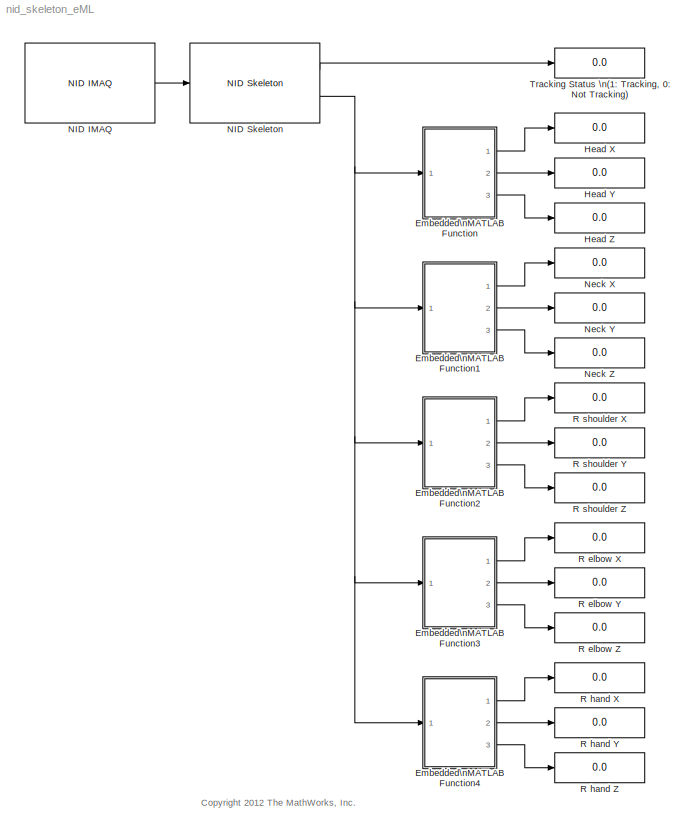
MODEL nid_skeleton_eML
KIND model
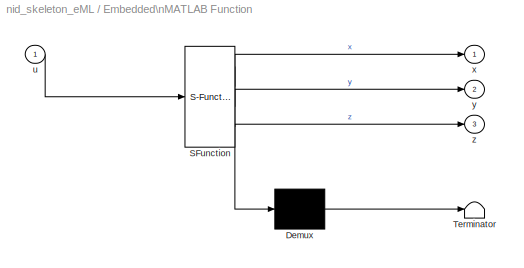
BLOCK [SubSystem] Embedded\nMATLAB Function
  ErrorFcn = Stateflow.Translate.translate
  PermitHierarchicalResolution = ExplicitOnly
  Ports = [1, 3]
  RequestExecContextInheritance = off
  SFBlockType = MATLAB Function
  SID = 241
  TreatAsAtomicUnit = on
BLOCK [Demux] Embedded\nMATLAB Function/ Demux 
  Outputs = 1
  Ports = [1, 1]
  SID = 241::21
BLOCK [S-Function] Embedded\nMATLAB Function/ SFunction 
  EnableBusSupport = off
  FunctionName = sf_sfun
  PortCounts = [1 4]
  Ports = [1, 4]
  SFcnIsStateOwnerBlock = off
  SFunctionDeploymentMode = off
  SID = 241::20
  Tag = Stateflow S-Function 2
BLOCK [Terminator] Embedded\nMATLAB Function/ Terminator 
  SID = 241::22
BLOCK [Inport] Embedded\nMATLAB Function/u
  IconDisplay = Port number
  SID = 241::1
BLOCK [Outport] Embedded\nMATLAB Function/x
  IconDisplay = Port number
  SID = 241::18
BLOCK [Outport] Embedded\nMATLAB Function/y
  IconDisplay = Port number
  Port = 2
  SID = 241::5
BLOCK [Outport] Embedded\nMATLAB Function/z
  IconDisplay = Port number
  Port = 3
  SID = 241::19
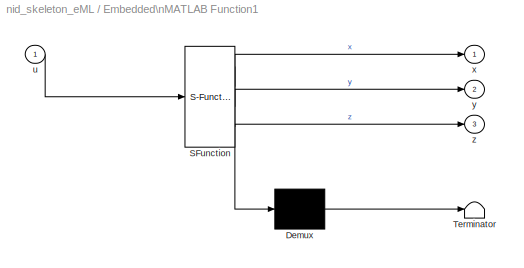
BLOCK [SubSystem] Embedded\nMATLAB Function1
  ErrorFcn = Stateflow.Translate.translate
  PermitHierarchicalResolution = ExplicitOnly
  Ports = [1, 3]
  RequestExecContextInheritance = off
  SFBlockType = MATLAB Function
  SID = 242
  TreatAsAtomicUnit = on
BLOCK [Demux] Embedded\nMATLAB Function1/ Demux 
  Outputs = 1
  Ports = [1, 1]
  SID = 242::21
BLOCK [S-Function] Embedded\nMATLAB Function1/ SFunction 
  EnableBusSupport = off
  FunctionName = sf_sfun
  PortCounts = [1 4]
  Ports = [1, 4]
  SFcnIsStateOwnerBlock = off
  SFunctionDeploymentMode = off
  SID = 242::20
  Tag = Stateflow S-Function 1
BLOCK [Terminator] Embedded\nMATLAB Function1/ Terminator 
  SID = 242::22
BLOCK [Inport] Embedded\nMATLAB Function1/u
  IconDisplay = Port number
  SID = 242::1
BLOCK [Outport] Embedded\nMATLAB Function1/x
  IconDisplay = Port number
  SID = 242::18
BLOCK [Outport] Embedded\nMATLAB Function1/y
  IconDisplay = Port number
  Port = 2
  SID = 242::5
BLOCK [Outport] Embedded\nMATLAB Function1/z
  IconDisplay = Port number
  Port = 3
  SID = 242::19
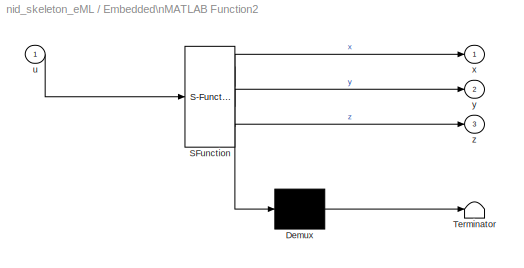
BLOCK [SubSystem] Embedded\nMATLAB Function2
  ErrorFcn = Stateflow.Translate.translate
  PermitHierarchicalResolution = ExplicitOnly
  Ports = [1, 3]
  RequestExecContextInheritance = off
  SFBlockType = MATLAB Function
  SID = 243
  TreatAsAtomicUnit = on
BLOCK [Demux] Embedded\nMATLAB Function2/ Demux 
  Outputs = 1
  Ports = [1, 1]
  SID = 243::21
BLOCK [S-Function] Embedded\nMATLAB Function2/ SFunction 
  EnableBusSupport = off
  FunctionName = sf_sfun
  PortCounts = [1 4]
  Ports = [1, 4]
  SFcnIsStateOwnerBlock = off
  SFunctionDeploymentMode = off
  SID = 243::20
  Tag = Stateflow S-Function 3
BLOCK [Terminator] Embedded\nMATLAB Function2/ Terminator 
  SID = 243::22
BLOCK [Inport] Embedded\nMATLAB Function2/u
  IconDisplay = Port number
  SID = 243::1
BLOCK [Outport] Embedded\nMATLAB Function2/x
  IconDisplay = Port number
  SID = 243::18
BLOCK [Outport] Embedded\nMATLAB Function2/y
  IconDisplay = Port number
  Port = 2
  SID = 243::5
BLOCK [Outport] Embedded\nMATLAB Function2/z
  IconDisplay = Port number
  Port = 3
  SID = 243::19
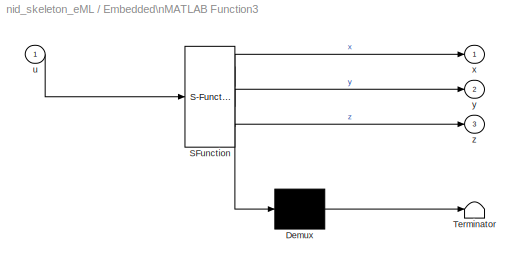
BLOCK [SubSystem] Embedded\nMATLAB Function3
  ErrorFcn = Stateflow.Translate.translate
  PermitHierarchicalResolution = ExplicitOnly
  Ports = [1, 3]
  RequestExecContextInheritance = off
  SFBlockType = MATLAB Function
  SID = 244
  TreatAsAtomicUnit = on
BLOCK [Demux] Embedded\nMATLAB Function3/ Demux 
  Outputs = 1
  Ports = [1, 1]
  SID = 244::21
BLOCK [S-Function] Embedded\nMATLAB Function3/ SFunction 
  EnableBusSupport = off
  FunctionName = sf_sfun
  PortCounts = [1 4]
  Ports = [1, 4]
  SFcnIsStateOwnerBlock = off
  SFunctionDeploymentMode = off
  SID = 244::20
  Tag = Stateflow S-Function 4
BLOCK [Terminator] Embedded\nMATLAB Function3/ Terminator 
  SID = 244::22
BLOCK [Inport] Embedded\nMATLAB Function3/u
  IconDisplay = Port number
  SID = 244::1
BLOCK [Outport] Embedded\nMATLAB Function3/x
  IconDisplay = Port number
  SID = 244::18
BLOCK [Outport] Embedded\nMATLAB Function3/y
  IconDisplay = Port number
  Port = 2
  SID = 244::5
BLOCK [Outport] Embedded\nMATLAB Function3/z
  IconDisplay = Port number
  Port = 3
  SID = 244::19
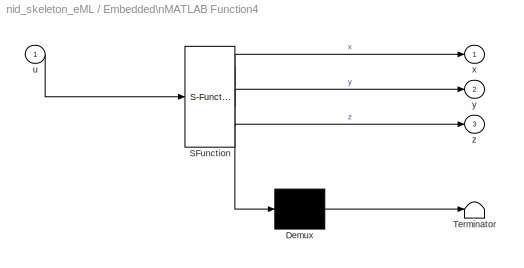
BLOCK [SubSystem] Embedded\nMATLAB Function4
  ErrorFcn = Stateflow.Translate.translate
  PermitHierarchicalResolution = ExplicitOnly
  Ports = [1, 3]
  RequestExecContextInheritance = off
  SFBlockType = MATLAB Function
  SID = 245
  TreatAsAtomicUnit = on
BLOCK [Demux] Embedded\nMATLAB Function4/ Demux 
  Outputs = 1
  Ports = [1, 1]
  SID = 245::21
BLOCK [S-Function] Embedded\nMATLAB Function4/ SFunction 
  EnableBusSupport = off
  FunctionName = sf_sfun
  PortCounts = [1 4]
  Ports = [1, 4]
  SFcnIsStateOwnerBlock = off
  SFunctionDeploymentMode = off
  SID = 245::20
  Tag = Stateflow S-Function 5
BLOCK [Terminator] Embedded\nMATLAB Function4/ Terminator 
  SID = 245::22
BLOCK [Inport] Embedded\nMATLAB Function4/u
  IconDisplay = Port number
  SID = 245::1
BLOCK [Outport] Embedded\nMATLAB Function4/x
  IconDisplay = Port number
  SID = 245::18
BLOCK [Outport] Embedded\nMATLAB Function4/y
  IconDisplay = Port number
  Port = 2
  SID = 245::5
BLOCK [Outport] Embedded\nMATLAB Function4/z
  IconDisplay = Port number
  Port = 3
  SID = 245::19
BLOCK [Display] Head X
  Decimation = 1
  Ports = [1]
  SID = 133
BLOCK [Display] Head Y
  Decimation = 1
  Ports = [1]
  SID = 195
BLOCK [Display] Head Z
  Decimation = 1
  Ports = [1]
  SID = 196
BLOCK [Reference] NID IMAQ  REF=nid_lib/NID IMAQ
  Ports = [0, 1]
  SID = 84
  SourceBlock = nid_lib/NID IMAQ
  SourceType = NID IMAQ
  angle = 0
  angle_read = off
  imaq_depth = off
  imaq_image = off
  imaq_ir = off
  imaq_motion = off
  imaq_sample_time = 1/30
  imaq_skeleton = on
  mirror_image = off
  near_mode = off
  needPsiPose = off
  res_fps = VGA (640x480): 30 FPS
  view_point = off
BLOCK [Reference] NID Skeleton  REF=nid_lib/NID Skeleton
  Ports = [1, 2]
  SID = 85
  SourceBlock = nid_lib/NID Skeleton
  SourceType = NID Skeleton
  conv_XYZ_RW = on
  num_of_skeleton_tracking = 1
  viewer = off
BLOCK [Display] Neck X
  Decimation = 1
  Ports = [1]
  SID = 197
BLOCK [Display] Neck Y
  Decimation = 1
  Ports = [1]
  SID = 198
BLOCK [Display] Neck Z
  Decimation = 1
  Ports = [1]
  SID = 199
BLOCK [Display] R elbow X
  Decimation = 1
  Ports = [1]
  SID = 221
BLOCK [Display] R elbow Y
  Decimation = 1
  Ports = [1]
  SID = 219
BLOCK [Display] R elbow Z
  Decimation = 1
  Ports = [1]
  SID = 220
BLOCK [Display] R hand X
  Decimation = 1
  Ports = [1]
  SID = 230
BLOCK [Display] R hand Y
  Decimation = 1
  Ports = [1]
  SID = 231
BLOCK [Display] R hand Z
  Decimation = 1
  Ports = [1]
  SID = 232
BLOCK [Display] R shoulder X
  Decimation = 1
  Ports = [1]
  SID = 208
BLOCK [Display] R shoulder Y
  Decimation = 1
  Ports = [1]
  SID = 209
BLOCK [Display] R shoulder Z
  Decimation = 1
  Ports = [1]
  SID = 210
BLOCK [Display] Tracking Status \n(1: Tracking, 0: Not Tracking)
  Decimation = 1
  Ports = [1]
  SID = 134
ANNOTATION (root): <copyright redacted>
LINE Embedded\nMATLAB Function/ Demux :1 -> Embedded\nMATLAB Function/ Terminator :1
LINE Embedded\nMATLAB Function/ SFunction :1 -> Embedded\nMATLAB Function/ Demux :1
LINE Embedded\nMATLAB Function/ SFunction :2 -> Embedded\nMATLAB Function/x:1
LINE Embedded\nMATLAB Function/ SFunction :3 -> Embedded\nMATLAB Function/y:1
LINE Embedded\nMATLAB Function/ SFunction :4 -> Embedded\nMATLAB Function/z:1
LINE Embedded\nMATLAB Function/u:1 -> Embedded\nMATLAB Function/ SFunction :1
LINE Embedded\nMATLAB Function1/ Demux :1 -> Embedded\nMATLAB Function1/ Terminator :1
LINE Embedded\nMATLAB Function1/ SFunction :1 -> Embedded\nMATLAB Function1/ Demux :1
LINE Embedded\nMATLAB Function1/ SFunction :2 -> Embedded\nMATLAB Function1/x:1
LINE Embedded\nMATLAB Function1/ SFunction :3 -> Embedded\nMATLAB Function1/y:1
LINE Embedded\nMATLAB Function1/ SFunction :4 -> Embedded\nMATLAB Function1/z:1
LINE Embedded\nMATLAB Function1/u:1 -> Embedded\nMATLAB Function1/ SFunction :1
LINE Embedded\nMATLAB Function1:1 -> Neck X:1
LINE Embedded\nMATLAB Function1:2 -> Neck Y:1
LINE Embedded\nMATLAB Function1:3 -> Neck Z:1
LINE Embedded\nMATLAB Function2/ Demux :1 -> Embedded\nMATLAB Function2/ Terminator :1
LINE Embedded\nMATLAB Function2/ SFunction :1 -> Embedded\nMATLAB Function2/ Demux :1
LINE Embedded\nMATLAB Function2/ SFunction :2 -> Embedded\nMATLAB Function2/x:1
LINE Embedded\nMATLAB Function2/ SFunction :3 -> Embedded\nMATLAB Function2/y:1
LINE Embedded\nMATLAB Function2/ SFunction :4 -> Embedded\nMATLAB Function2/z:1
LINE Embedded\nMATLAB Function2/u:1 -> Embedded\nMATLAB Function2/ SFunction :1
LINE Embedded\nMATLAB Function2:1 -> R shoulder X:1
LINE Embedded\nMATLAB Function2:2 -> R shoulder Y:1
LINE Embedded\nMATLAB Function2:3 -> R shoulder Z:1
LINE Embedded\nMATLAB Function3/ Demux :1 -> Embedded\nMATLAB Function3/ Terminator :1
LINE Embedded\nMATLAB Function3/ SFunction :1 -> Embedded\nMATLAB Function3/ Demux :1
LINE Embedded\nMATLAB Function3/ SFunction :2 -> Embedded\nMATLAB Function3/x:1
LINE Embedded\nMATLAB Function3/ SFunction :3 -> Embedded\nMATLAB Function3/y:1
LINE Embedded\nMATLAB Function3/ SFunction :4 -> Embedded\nMATLAB Function3/z:1
LINE Embedded\nMATLAB Function3/u:1 -> Embedded\nMATLAB Function3/ SFunction :1
LINE Embedded\nMATLAB Function3:1 -> R elbow X:1
LINE Embedded\nMATLAB Function3:2 -> R elbow Y:1
LINE Embedded\nMATLAB Function3:3 -> R elbow Z:1
LINE Embedded\nMATLAB Function4/ Demux :1 -> Embedded\nMATLAB Function4/ Terminator :1
LINE Embedded\nMATLAB Function4/ SFunction :1 -> Embedded\nMATLAB Function4/ Demux :1
LINE Embedded\nMATLAB Function4/ SFunction :2 -> Embedded\nMATLAB Function4/x:1
LINE Embedded\nMATLAB Function4/ SFunction :3 -> Embedded\nMATLAB Function4/y:1
LINE Embedded\nMATLAB Function4/ SFunction :4 -> Embedded\nMATLAB Function4/z:1
LINE Embedded\nMATLAB Function4/u:1 -> Embedded\nMATLAB Function4/ SFunction :1
LINE Embedded\nMATLAB Function4:1 -> R hand X:1
LINE Embedded\nMATLAB Function4:2 -> R hand Y:1
LINE Embedded\nMATLAB Function4:3 -> R hand Z:1
LINE Embedded\nMATLAB Function:1 -> Head X:1
LINE Embedded\nMATLAB Function:2 -> Head Y:1
LINE Embedded\nMATLAB Function:3 -> Head Z:1
LINE NID IMAQ:1 -> NID Skeleton:1
LINE NID Skeleton:1 -> Tracking Status \n(1: Tracking, 0: Not Tracking):1
NET NID Skeleton:2 -> Embedded\nMATLAB Function1:1, Embedded\nMATLAB Function2:1, Embedded\nMATLAB Function3:1, Embedded\nMATLAB Function4:1, Embedded\nMATLAB Function:1
note: NET lines group one-source signal fan-out (src -> all destinations, sorted); 1:1 wires keep LINE
CHART Embedded\nMATLAB Function1 states=1 transitions=1
  STATE_LABEL 'eML_blk_kernel()'
CHART Embedded\nMATLAB Function states=1 transitions=1
  STATE_LABEL 'eML_blk_kernel()'
CHART Embedded\nMATLAB Function2 states=1 transitions=1
  STATE_LABEL 'eML_blk_kernel()'
CHART Embedded\nMATLAB Function3 states=1 transitions=1
  STATE_LABEL 'eML_blk_kernel()'
CHART Embedded\nMATLAB Function4 states=1 transitions=1
  STATE_LABEL 'eML_blk_kernel()'
